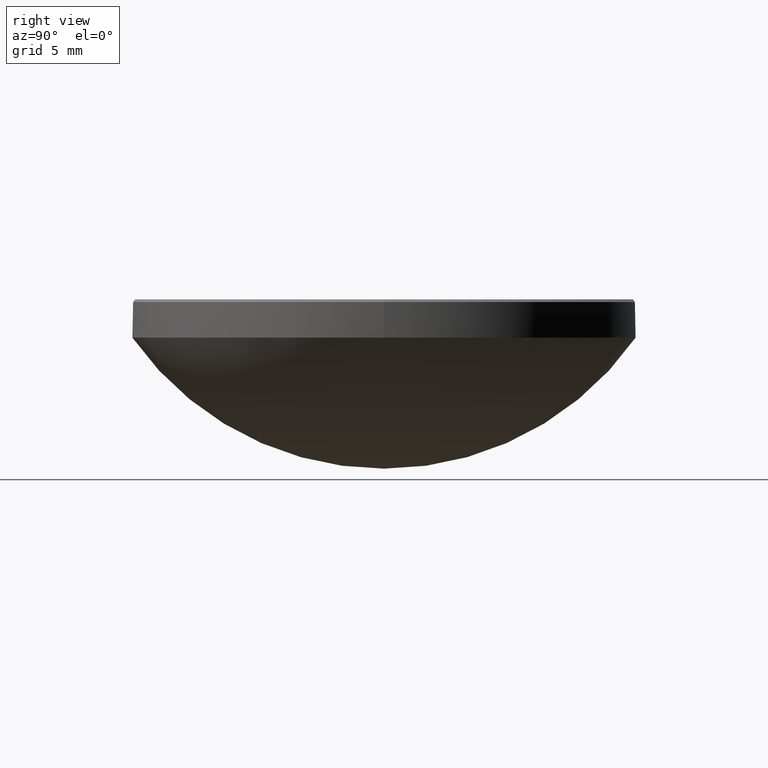
[diagram: clean part render]
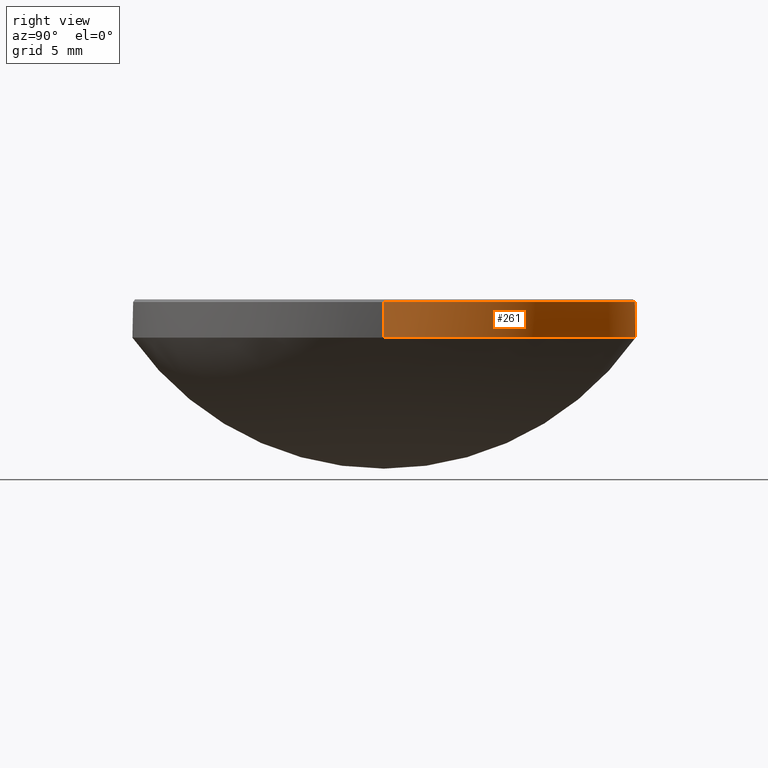
[diagram: same view with one face highlighted and labeled with its STEP entity id]
A machine part, right view. The second image highlights one B-rep face of the part: STEP entity #261.
In plain terms, the highlighted cylindrical surface (partial cylindrical patch) has radius 12.7 mm, axis along (-0, -0, -1).
Its self-contained STEP definition (entity closure, byte-faithful):
#3 = VECTOR ( 'NONE', #250, 1000.000000000000000 ) ;
#9 = VERTEX_POINT ( 'NONE', #266 ) ;
#12 = EDGE_CURVE ( 'NONE', #198, #106, #65, .T. ) ;
#13 = CARTESIAN_POINT ( 'NONE',  ( 0.000000000000000000, 12.69999999999999574, 10.00000000000000000 ) ) ;
#16 = DIRECTION ( 'NONE',  ( -0.000000000000000000, -0.000000000000000000, -1.000000000000000000 ) ) ;
#29 = ORIENTED_EDGE ( 'NONE', *, *, #118, .T. ) ;
#36 = CARTESIAN_POINT ( 'NONE',  ( -12.69999999999999929, 0.000000000000000000, 20.00000000000000000 ) ) ;
#57 = FACE_OUTER_BOUND ( 'NONE', #153, .T. ) ;
#58 = DIRECTION ( 'NONE',  ( 1.000000000000000000, 0.000000000000000000, 0.000000000000000000 ) ) ;
#62 = CYLINDRICAL_SURFACE ( 'NONE', #88, 12.69999999999999929 ) ;
#64 = EDGE_CURVE ( 'NONE', #9, #265, #98, .T. ) ;
#65 = CIRCLE ( 'NONE', #236, 12.69999999999999751 ) ;
#71 = CARTESIAN_POINT ( 'NONE',  ( 0.000000000000000000, 0.000000000000000000, 10.00000000000000000 ) ) ;
#78 = DIRECTION ( 'NONE',  ( 0.000000000000000000, 0.000000000000000000, -1.000000000000000000 ) ) ;
#79 = CARTESIAN_POINT ( 'NONE',  ( 12.69999999999999929, 1.555301434917138433E-15, 11.79999999999999183 ) ) ;
#85 = CIRCLE ( 'NONE', #151, 12.69999999999999751 ) ;
#87 = EDGE_CURVE ( 'NONE', #9, #172, #243, .T. ) ;
#88 = AXIS2_PLACEMENT_3D ( 'NONE', #145, #16, #185 ) ;
#97 = CARTESIAN_POINT ( 'NONE',  ( 12.69999999999999751, 1.555301434917138235E-15, 10.00000000000000000 ) ) ;
#98 = LINE ( 'NONE', #36, #3 ) ;
#106 = VERTEX_POINT ( 'NONE', #13 ) ;
#116 = CARTESIAN_POINT ( 'NONE',  ( 0.000000000000000000, 0.000000000000000000, 10.00000000000000000 ) ) ;
#118 = EDGE_CURVE ( 'NONE', #106, #265, #85, .T. ) ;
#131 = ORIENTED_EDGE ( 'NONE', *, *, #188, .T. ) ;
#133 = ORIENTED_EDGE ( 'NONE', *, *, #64, .F. ) ;
#139 = DIRECTION ( 'NONE',  ( 1.000000000000000000, 0.000000000000000000, 0.000000000000000000 ) ) ;
#142 = VECTOR ( 'NONE', #277, 1000.000000000000000 ) ;
#145 = CARTESIAN_POINT ( 'NONE',  ( 0.000000000000000000, 0.000000000000000000, 20.00000000000000000 ) ) ;
#151 = AXIS2_PLACEMENT_3D ( 'NONE', #116, #223, #139 ) ;
#153 = EDGE_LOOP ( 'NONE', ( #281, #131, #240, #29, #133 ) ) ;
#172 = VERTEX_POINT ( 'NONE', #79 ) ;
#177 = DIRECTION ( 'NONE',  ( 1.000000000000000000, 0.000000000000000000, 0.000000000000000000 ) ) ;
#185 = DIRECTION ( 'NONE',  ( -1.000000000000000000, 0.000000000000000000, 0.000000000000000000 ) ) ;
#186 = LINE ( 'NONE', #255, #142 ) ;
#188 = EDGE_CURVE ( 'NONE', #172, #198, #186, .T. ) ;
#195 = DIRECTION ( 'NONE',  ( -0.000000000000000000, -0.000000000000000000, 1.000000000000000000 ) ) ;
#198 = VERTEX_POINT ( 'NONE', #97 ) ;
#205 = CARTESIAN_POINT ( 'NONE',  ( 0.000000000000000000, 0.000000000000000000, 11.79999999999999183 ) ) ;
#223 = DIRECTION ( 'NONE',  ( -0.000000000000000000, -0.000000000000000000, 1.000000000000000000 ) ) ;
#236 = AXIS2_PLACEMENT_3D ( 'NONE', #71, #195, #177 ) ;
#240 = ORIENTED_EDGE ( 'NONE', *, *, #12, .T. ) ;
#243 = CIRCLE ( 'NONE', #275, 12.69999999999999929 ) ;
#250 = DIRECTION ( 'NONE',  ( -0.000000000000000000, -0.000000000000000000, -1.000000000000000000 ) ) ;
#255 = CARTESIAN_POINT ( 'NONE',  ( 12.69999999999999929, 1.555301434917138433E-15, 20.00000000000000000 ) ) ;
#261 = ADVANCED_FACE ( 'NONE', ( #57 ), #62, .T. ) ;
#265 = VERTEX_POINT ( 'NONE', #273 ) ;
#266 = CARTESIAN_POINT ( 'NONE',  ( -12.69999999999999929, 0.000000000000000000, 11.79999999999999183 ) ) ;
#273 = CARTESIAN_POINT ( 'NONE',  ( -12.69999999999999751, 0.000000000000000000, 10.00000000000000000 ) ) ;
#275 = AXIS2_PLACEMENT_3D ( 'NONE', #205, #78, #58 ) ;
#277 = DIRECTION ( 'NONE',  ( -0.000000000000000000, -0.000000000000000000, -1.000000000000000000 ) ) ;
#281 = ORIENTED_EDGE ( 'NONE', *, *, #87, .T. ) ;